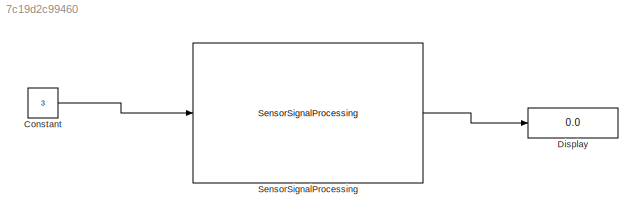
MODEL slx_7c19d2c99460
KIND model
CONFIG AbsTol = auto
CONFIG EnableMultiTasking = off
CONFIG FixedStep = auto
CONFIG MaxStep = auto
CONFIG MinStep = auto
CONFIG RelTol = 1e-3
CONFIG SampleTimeConstraint = Unconstrained
CONFIG Solver = VariableStepAuto
CONFIG SolverName = VariableStepAuto
CONFIG StartTime = 0.0
CONFIG StopTime = 10.0
BLOCK [Constant] Constant
  Value = 3
BLOCK [Display] Display
  Decimation = 1
  Ports = [1]
BLOCK [Reference] SensorSignalProcessing  REF=SensorLibrary/SensorSignalProcessing
  Ports = [1, 1]
  SourceBlock = SensorLibrary/SensorSignalProcessing
LINE Constant:1 -> SensorSignalProcessing:1
LINE SensorSignalProcessing:1 -> Display:1
